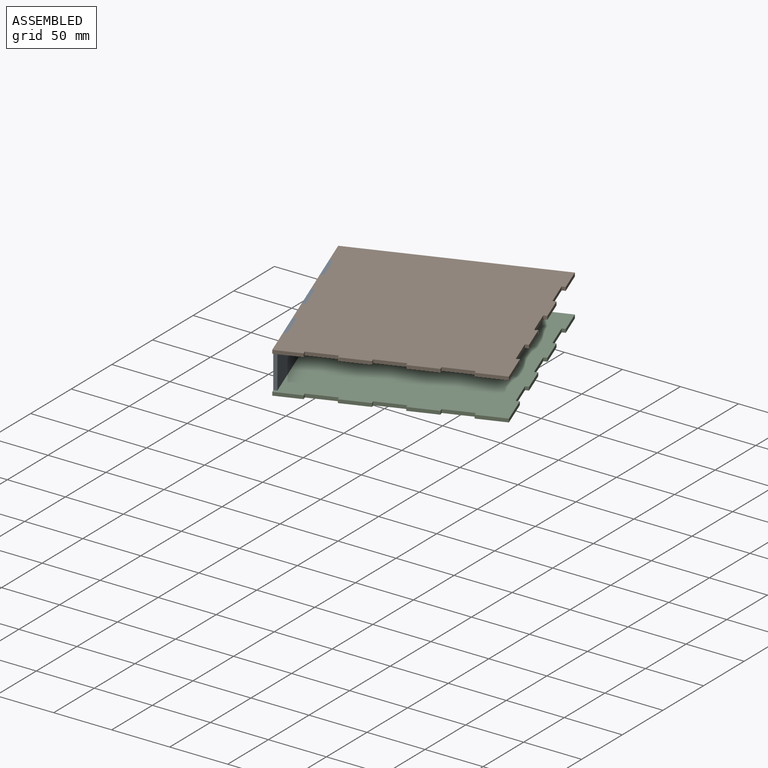
[diagram: assembled view]
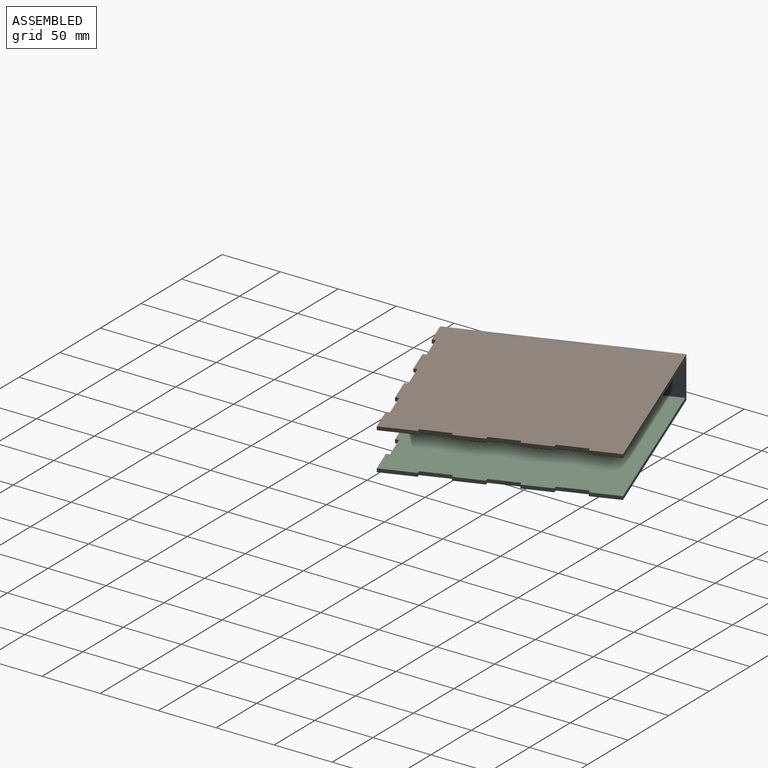
[diagram: assembled view, second angle]
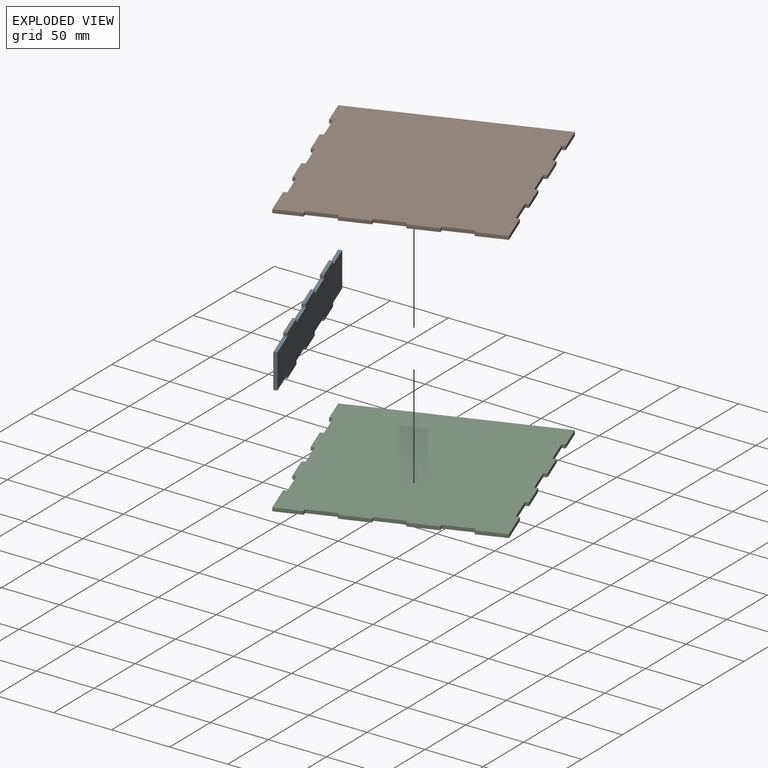
[diagram: exploded view]
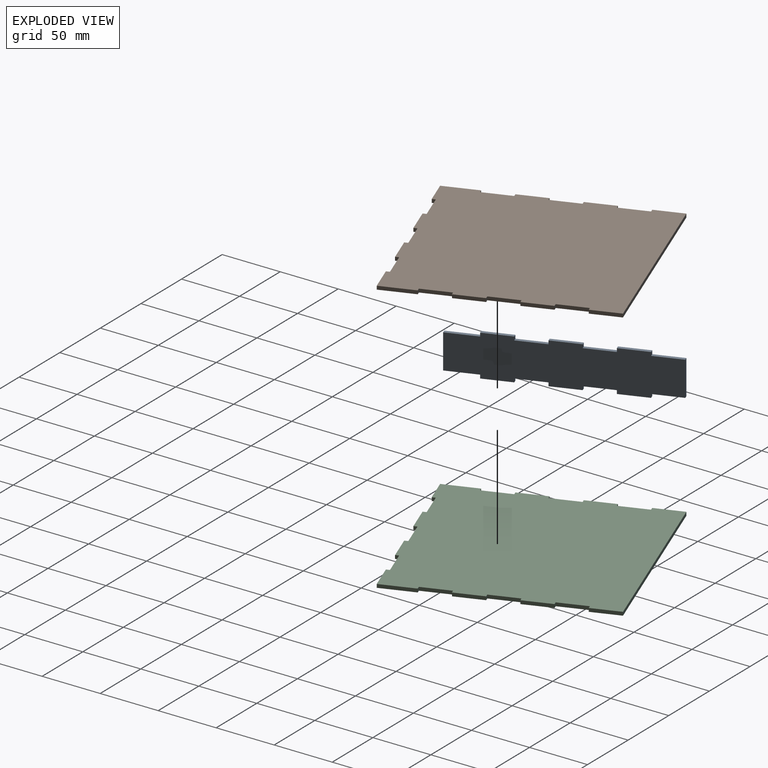
[diagram: exploded view, second angle]
ASSEMBLY  parts=3 mates=6
PART A: 30 faces, bbox 3x177x35.7 mm
  f0: plane 29.7x3mm, normal (0,1,0), area 89.1mm2, adj f1,f27,f28,f29
  f1: plane 25x3mm, normal (0,0,1), area 75mm2, adj f0,f2,f28,f29
  f2: plane 3x3mm, normal (0,1,0), area 9mm2, adj f1,f3,f28,f29
  f3: plane 25x3mm, normal (0,0,1), area 75mm2, adj f2,f4,f28,f29
  f4: plane 3x3mm, normal (0,-1,0), area 9mm2, adj f3,f5,f28,f29
  f5: plane 25x3mm, normal (0,0,1), area 75mm2, adj f4,f6,f28,f29
  f6: plane 3x3mm, normal (0,1,0), area 9mm2, adj f5,f7,f28,f29
  f7: plane 25x3mm, normal (0,0,1), area 75mm2, adj f6,f8,f28,f29
  f8: plane 3x3mm, normal (0,-1,0), area 9mm2, adj f7,f9,f28,f29
  f9: plane 25x3mm, normal (0,0,1), area 75mm2, adj f8,f10,f28,f29
  f10: plane 3x3mm, normal (0,1,0), area 9mm2, adj f9,f11,f28,f29
  f11: plane 25x3mm, normal (0,0,1), area 75mm2, adj f10,f12,f28,f29
  f12: plane 3x3mm, normal (0,-1,0), area 9mm2, adj f11,f13,f28,f29
  f13: plane 27x3mm, normal (0,0,1), area 81mm2, adj f12,f14,f28,f29
  f14: plane 29.7x3mm, normal (0,-1,0), area 89.1mm2, adj f13,f15,f28,f29
  f15: plane 27x3mm, normal (0,0,-1), area 81mm2, adj f14,f16,f28,f29
  f16: plane 3x3mm, normal (0,-1,0), area 9mm2, adj f15,f17,f28,f29
  f17: plane 25x3mm, normal (0,0,-1), area 75mm2, adj f16,f18,f28,f29
  f18: plane 3x3mm, normal (0,1,0), area 9mm2, adj f17,f19,f28,f29
  f19: plane 25x3mm, normal (0,0,-1), area 75mm2, adj f18,f20,f28,f29
  f20: plane 3x3mm, normal (0,-1,0), area 9mm2, adj f19,f21,f28,f29
  f21: plane 25x3mm, normal (0,0,-1), area 75mm2, adj f20,f22,f28,f29
  f22: plane 3x3mm, normal (0,1,0), area 9mm2, adj f21,f23,f28,f29
  f23: plane 25x3mm, normal (0,0,-1), area 75mm2, adj f22,f24,f28,f29
  f24: plane 3x3mm, normal (0,-1,0), area 9mm2, adj f23,f25,f28,f29
  f25: plane 25x3mm, normal (0,0,-1), area 75mm2, adj f24,f26,f28,f29
  f26: plane 3x3mm, normal (0,1,0), area 9mm2, adj f25,f27,f28,f29
  f27: plane 25x3mm, normal (0,0,-1), area 75mm2, adj f0,f26,f28,f29
  f28: plane 177x35.7mm, normal (1,0,0), area 5706.9mm2, adj f0,f1,f2,f3,f4,f5,f6,f7
  f29: plane 177x35.7mm, normal (-1,0,0), area 5706.9mm2, adj f0,f1,f2,f3,f4,f5,f6,f7
PART B: 42 faces, bbox 173x180x3 mm
  f0: plane 25x3mm, normal (1,0,0), area 75mm2, adj f1,f39,f40,f41
  f1: plane 3x3mm, normal (0,-1,0), area 9mm2, adj f0,f2,f40,f41
  f2: plane 25x3mm, normal (1,0,0), area 75mm2, adj f1,f3,f40,f41
  f3: plane 173x3mm, normal (0,1,0), area 519mm2, adj f2,f4,f40,f41
  f4: plane 25x3mm, normal (-1,0,0), area 75mm2, adj f3,f5,f40,f41
  f5: plane 3x3mm, normal (0,-1,0), area 9mm2, adj f4,f6,f40,f41
  f6: plane 25x3mm, normal (-1,0,0), area 75mm2, adj f5,f7,f40,f41
  f7: plane 3x3mm, normal (0,1,0), area 9mm2, adj f6,f8,f40,f41
  f8: plane 25x3mm, normal (-1,0,0), area 75mm2, adj f7,f9,f40,f41
  f9: plane 3x3mm, normal (0,-1,0), area 9mm2, adj f8,f10,f40,f41
  f10: plane 25x3mm, normal (-1,0,0), area 75mm2, adj f9,f11,f40,f41
  f11: plane 3x3mm, normal (0,1,0), area 9mm2, adj f10,f12,f40,f41
  f12: plane 25x3mm, normal (-1,0,0), area 75mm2, adj f11,f13,f40,f41
  f13: plane 3x3mm, normal (0,-1,0), area 9mm2, adj f12,f14,f40,f41
  f14: plane 25x3mm, normal (-1,0,0), area 75mm2, adj f13,f15,f40,f41
  f15: plane 3x3mm, normal (0,1,0), area 9mm2, adj f14,f16,f40,f41
  f16: plane 30x3mm, normal (-1,0,0), area 90mm2, adj f15,f17,f40,f41
  f17: plane 23x3mm, normal (0,-1,0), area 69mm2, adj f16,f18,f40,f41
  f18: plane 3x3mm, normal (1,0,0), area 9mm2, adj f17,f19,f40,f41
  f19: plane 25x3mm, normal (0,-1,0), area 75mm2, adj f18,f20,f40,f41
  f20: plane 3x3mm, normal (-1,0,0), area 9mm2, adj f19,f21,f40,f41
  f21: plane 25x3mm, normal (0,-1,0), area 75mm2, adj f20,f22,f40,f41
  f22: plane 3x3mm, normal (1,0,0), area 9mm2, adj f21,f23,f40,f41
  f23: plane 25x3mm, normal (0,-1,0), area 75mm2, adj f22,f24,f40,f41
  f24: plane 3x3mm, normal (-1,0,0), area 9mm2, adj f23,f25,f40,f41
  f25: plane 25x3mm, normal (0,-1,0), area 75mm2, adj f24,f26,f40,f41
  f26: plane 3x3mm, normal (1,0,0), area 9mm2, adj f25,f27,f40,f41
  f27: plane 25x3mm, normal (0,-1,0), area 75mm2, adj f26,f28,f40,f41
  f28: plane 3x3mm, normal (-1,0,0), area 9mm2, adj f27,f29,f40,f41
  f29: plane 25x3mm, normal (0,-1,0), area 75mm2, adj f28,f30,f40,f41
  f30: plane 30x3mm, normal (1,0,0), area 90mm2, adj f29,f31,f40,f41
  f31: plane 3x3mm, normal (0,1,0), area 9mm2, adj f30,f32,f40,f41
  f32: plane 25x3mm, normal (1,0,0), area 75mm2, adj f31,f33,f40,f41
  f33: plane 3x3mm, normal (0,-1,0), area 9mm2, adj f32,f34,f40,f41
  f34: plane 25x3mm, normal (1,0,0), area 75mm2, adj f33,f35,f40,f41
  f35: plane 3x3mm, normal (0,1,0), area 9mm2, adj f34,f36,f40,f41
  f36: plane 25x3mm, normal (1,0,0), area 75mm2, adj f35,f37,f40,f41
  f37: plane 3x3mm, normal (0,-1,0), area 9mm2, adj f36,f38,f40,f41
  f38: plane 25x3mm, normal (1,0,0), area 75mm2, adj f37,f39,f40,f41
  f39: plane 3x3mm, normal (0,1,0), area 9mm2, adj f0,f38,f40,f41
  f40: plane 180x173mm, normal (0,0,1), area 30465mm2, adj f0,f1,f2,f3,f4,f5,f6,f7
  f41: plane 180x173mm, normal (0,0,-1), area 30465mm2, adj f0,f1,f2,f3,f4,f5,f6,f7
PART C: same geometry as B
PLACE A rot(axis=(0,0,1),20deg) t=(811.2,932.98,-145.56)mm
PLACE B rot(axis=(0,0,1),20deg) t=(948.06,934.77,-119.68)mm
PLACE C rot(axis=(0,0,1),20deg) t=(948.06,934.77,-152.38)mm
MATE planar B.f3 <-> A.f0  axis (-0.34,0.94,0) through (859.11,1054.26,-118.18)mm
MATE planar A.f0 <-> C.f3  axis (-0.34,0.94,0) through (779.24,1025.18,-134.53)mm
MATE planar C.f41 <-> A.f25  axis (0,0,-1) through (889.69,970.27,-152.38)mm
MATE planar A.f7 <-> B.f40  axis (0,0,1) through (809.16,942.96,-116.68)mm
MATE planar A.f29 <-> B.f8  axis (-0.94,-0.34,0) through (808.07,941.58,-134.53)mm
MATE planar C.f12 <-> A.f29  axis (-0.94,-0.34,0) through (816.3,918.96,-150.88)mm
